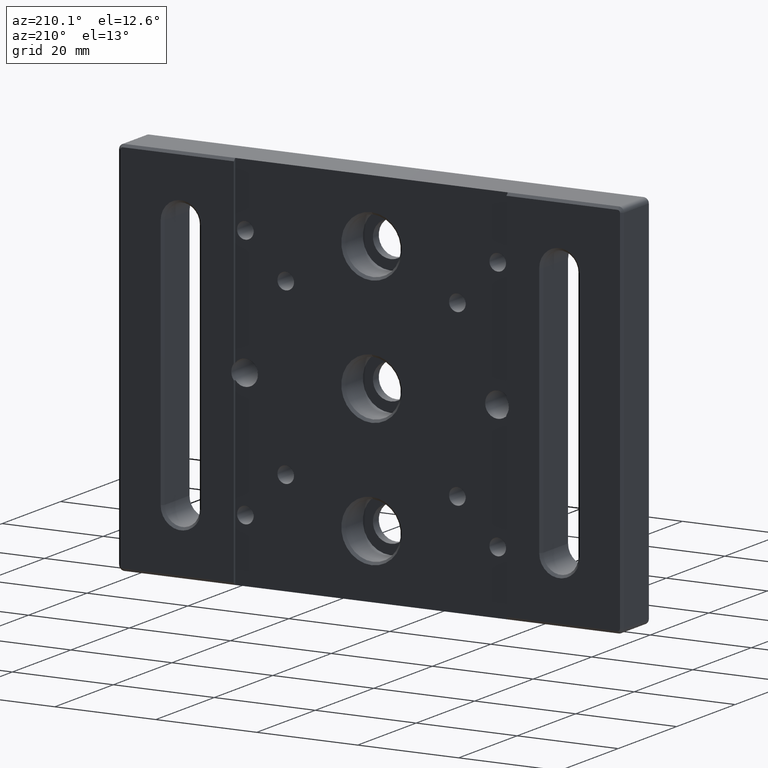
[diagram: clean part render]
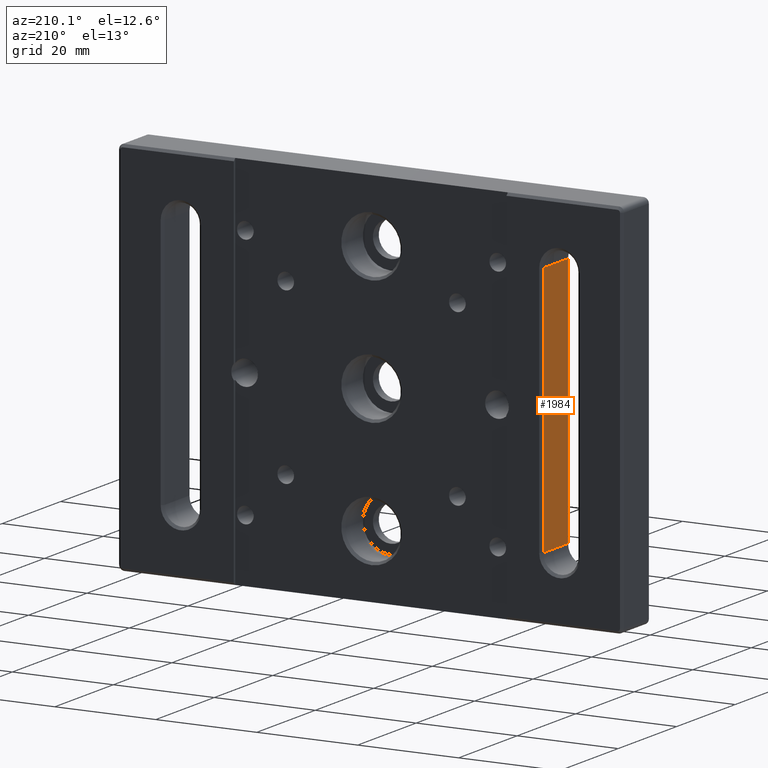
[diagram: same view with one face highlighted and labeled with its STEP entity id]
A machine part, auxiliary view. The second image highlights one B-rep face of the part: STEP entity #1984.
In plain terms, the highlighted planar face has unit normal (-1, 0, 0).
Its self-contained STEP definition (entity closure, byte-faithful):
#212 = DIRECTION ( 'NONE',  ( 6.938893903907228400E-017, 0.0000000000000000000, 1.000000000000000000 ) ) ;
#213 = CARTESIAN_POINT ( 'NONE',  ( 15.99999999999999600, 0.5000000000000161000, -62.50000000000000000 ) ) ;
#217 = CARTESIAN_POINT ( 'NONE',  ( 15.99999999999999600, 9.000000000000008900, -62.50000000000000000 ) ) ;
#218 = DIRECTION ( 'NONE',  ( -6.938893903907228400E-017, 0.0000000000000000000, -1.000000000000000000 ) ) ;
#315 = AXIS2_PLACEMENT_3D ( 'NONE', #1320, #1325, #1326 ) ;
#820 = EDGE_CURVE ( 'NONE', #959, #956, #1464, .T. ) ;
#824 = EDGE_CURVE ( 'NONE', #964, #953, #1455, .T. ) ;
#851 = EDGE_CURVE ( 'NONE', #964, #956, #1411, .T. ) ;
#859 = EDGE_CURVE ( 'NONE', #953, #959, #1397, .T. ) ;
#953 = VERTEX_POINT ( 'NONE', #1216 ) ;
#956 = VERTEX_POINT ( 'NONE', #1219 ) ;
#959 = VERTEX_POINT ( 'NONE', #1222 ) ;
#964 = VERTEX_POINT ( 'NONE', #1227 ) ;
#1167 = CARTESIAN_POINT ( 'NONE',  ( 16.00000000000000000, 9.500000000000000000, -12.50000000000000000 ) ) ;
#1168 = DIRECTION ( 'NONE',  ( -0.0000000000000000000, -1.000000000000000000, -0.0000000000000000000 ) ) ;
#1177 = DIRECTION ( 'NONE',  ( -0.0000000000000000000, -1.000000000000000000, -0.0000000000000000000 ) ) ;
#1178 = CARTESIAN_POINT ( 'NONE',  ( 15.99999999999999600, 9.500000000000000000, -62.50000000000000000 ) ) ;
#1216 = CARTESIAN_POINT ( 'NONE',  ( 15.99999999999999600, 9.000000000000008900, -62.50000000000000000 ) ) ;
#1219 = CARTESIAN_POINT ( 'NONE',  ( 16.00000000000000000, 0.5000000000000161000, -12.50000000000000000 ) ) ;
#1222 = CARTESIAN_POINT ( 'NONE',  ( 15.99999999999999600, 0.5000000000000161000, -62.50000000000000000 ) ) ;
#1227 = CARTESIAN_POINT ( 'NONE',  ( 16.00000000000000000, 9.000000000000008900, -12.50000000000000000 ) ) ;
#1320 = CARTESIAN_POINT ( 'NONE',  ( 15.99999999999999600, 9.500000000000000000, -62.50000000000000000 ) ) ;
#1322 = PLANE ( 'NONE',  #315 ) ;
#1325 = DIRECTION ( 'NONE',  ( -1.000000000000000000, 0.0000000000000000000, 6.938893903907228400E-017 ) ) ;
#1326 = DIRECTION ( 'NONE',  ( 6.938893903907228400E-017, 0.0000000000000000000, 1.000000000000000000 ) ) ;
#1395 = VECTOR ( 'NONE', #1177, 1000.000000000000000 ) ;
#1397 = LINE ( 'NONE', #1178, #1395 ) ;
#1408 = VECTOR ( 'NONE', #1168, 1000.000000000000000 ) ;
#1411 = LINE ( 'NONE', #1167, #1408 ) ;
#1453 = VECTOR ( 'NONE', #218, 1000.000000000000000 ) ;
#1455 = LINE ( 'NONE', #217, #1453 ) ;
#1463 = VECTOR ( 'NONE', #212, 1000.000000000000000 ) ;
#1464 = LINE ( 'NONE', #213, #1463 ) ;
#1984 = ADVANCED_FACE ( 'NONE', ( #2079 ), #1322, .T. ) ;
#2079 = FACE_OUTER_BOUND ( 'NONE', #2208, .T. ) ;
#2208 = EDGE_LOOP ( 'NONE', ( #2277, #2274, #2272, #2270 ) ) ;
#2270 = ORIENTED_EDGE ( 'NONE', *, *, #820, .T. ) ;
#2272 = ORIENTED_EDGE ( 'NONE', *, *, #859, .T. ) ;
#2274 = ORIENTED_EDGE ( 'NONE', *, *, #824, .T. ) ;
#2277 = ORIENTED_EDGE ( 'NONE', *, *, #851, .F. ) ;